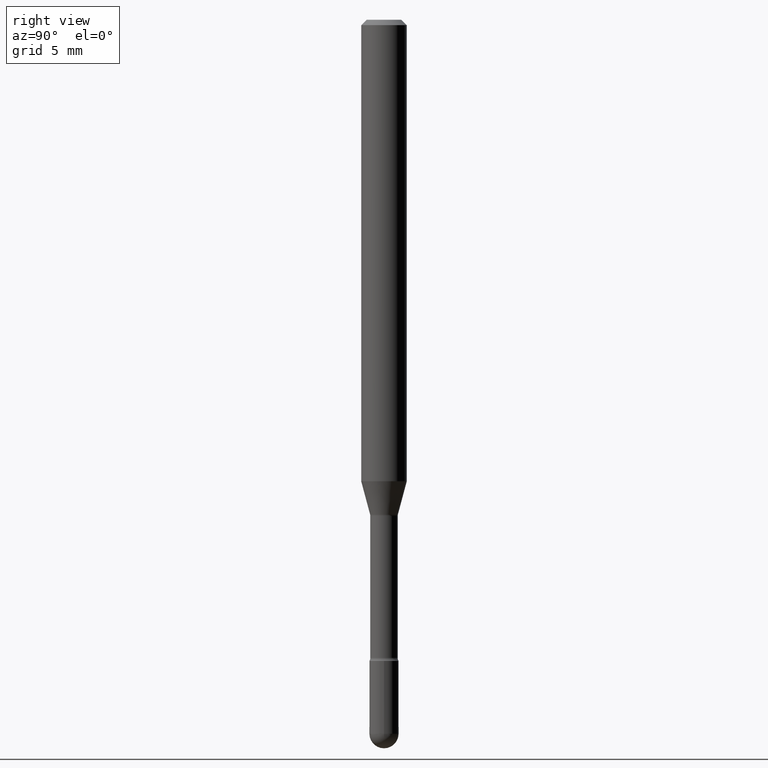
[diagram: clean part render]
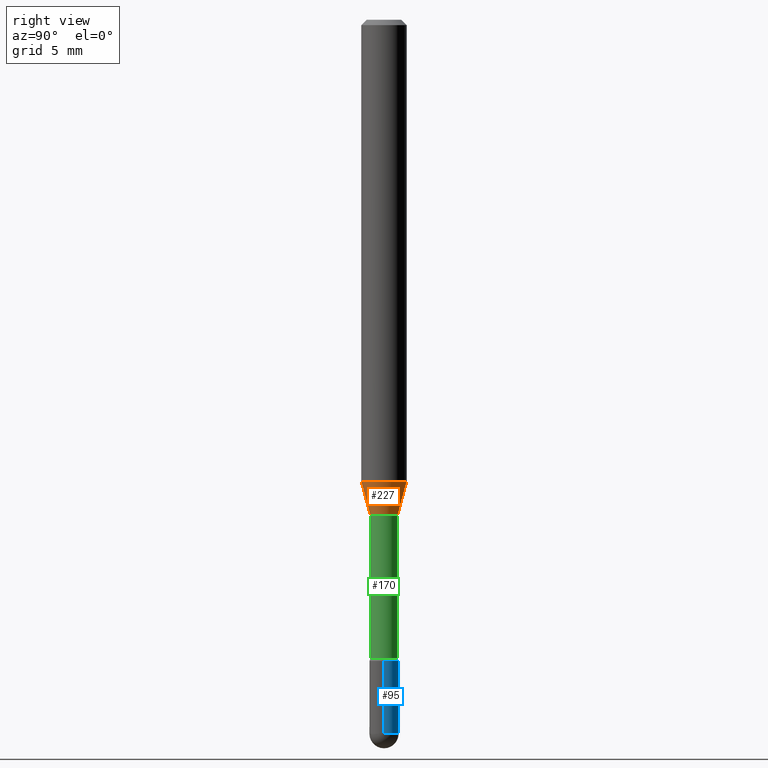
[diagram: same view with three faces highlighted in distinct colors, each labeled with its STEP entity id]
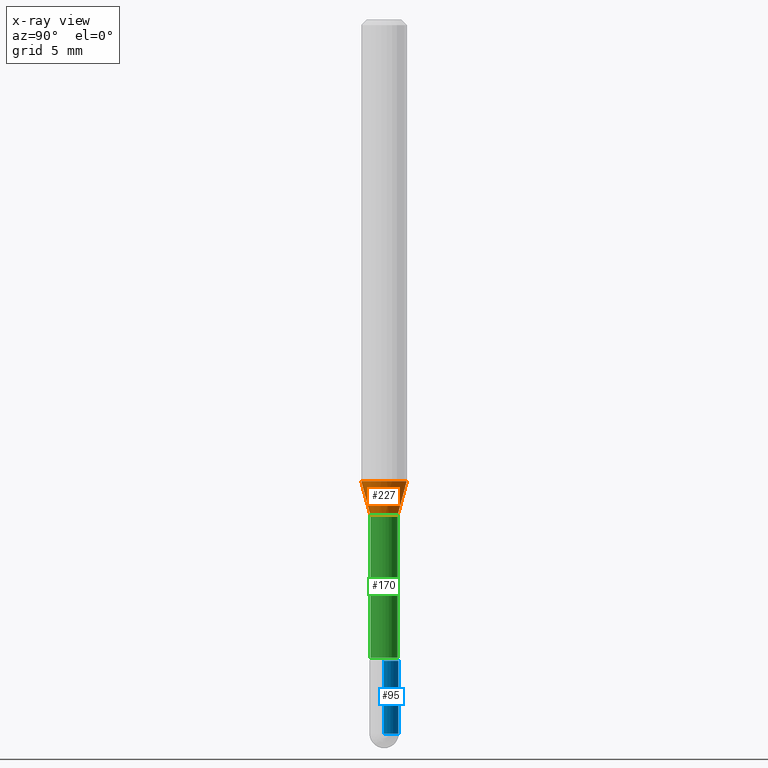
[diagram: x-ray of the same camera — body ghosted, the three highlighted faces saturated]
A machine part, right view with three faces highlighted in distinct colors.
The next image is the same camera in x-ray (body ghosted, the three faces saturated) — at least one of them is partly hidden behind the body in this view.
Their STEP definitions:

[orange] entity #227 — the highlighted conical surface has half-angle 15 deg.
#18 = VERTEX_POINT ( 'NONE', #257 ) ;
#33 = DIRECTION ( 'NONE',  ( -2.445487129029545768E-29, 3.491455099487080109E-15, 1.000000000000000000 ) ) ;
#34 = CONICAL_SURFACE ( 'NONE', #361, 0.03811111260566397985, 0.2617993877991496299 ) ;
#38 = DIRECTION ( 'NONE',  ( -2.445487129029545768E-29, 3.491455099487080109E-15, 1.000000000000000000 ) ) ;
#51 = VERTEX_POINT ( 'NONE', #214 ) ;
#76 = DIRECTION ( 'NONE',  ( -6.982962677686265922E-15, -1.000000000000000000, 4.370956789862821150E-15 ) ) ;
#86 = CARTESIAN_POINT ( 'NONE',  ( 3.098608108331811398E-29, -4.423924768494011913E-15, -1.267071934891534912 ) ) ;
#91 = EDGE_CURVE ( 'NONE', #51, #226, #359, .T. ) ;
#93 = CARTESIAN_POINT ( 'NONE',  ( 4.440892098500932831E-16, 0.06249999999999554523, -1.267071934891535356 ) ) ;
#115 = VERTEX_POINT ( 'NONE', #393 ) ;
#184 = DIRECTION ( 'NONE',  ( -1.807323732225325801E-15, -0.2588190451025175753, 0.9659258262890690894 ) ) ;
#187 = LINE ( 'NONE', #481, #453 ) ;
#189 = EDGE_CURVE ( 'NONE', #115, #51, #187, .T. ) ;
#191 = ORIENTED_EDGE ( 'NONE', *, *, #189, .F. ) ;
#214 = CARTESIAN_POINT ( 'NONE',  ( -4.364351673553609038E-16, -0.06250000000000446865, -1.267071934891534690 ) ) ;
#220 = DIRECTION ( 'NONE',  ( -2.445487129029545768E-29, 3.491455099487080109E-15, 1.000000000000000000 ) ) ;
#226 = VERTEX_POINT ( 'NONE', #93 ) ;
#227 = ADVANCED_FACE ( 'NONE', ( #485 ), #34, .T. ) ;
#244 = EDGE_LOOP ( 'NONE', ( #455, #450, #492, #191 ) ) ;
#256 = DIRECTION ( 'NONE',  ( -6.982962677686265922E-15, -1.000000000000000000, 0.000000000000000000 ) ) ;
#257 = CARTESIAN_POINT ( 'NONE',  ( 3.574424759935120767E-16, 0.03811111260565923364, -1.358092501787273143 ) ) ;
#276 = AXIS2_PLACEMENT_3D ( 'NONE', #86, #33, #76 ) ;
#306 = CARTESIAN_POINT ( 'NONE',  ( 3.321197733152312040E-29, -4.741718990940341378E-15, -1.358092501787273143 ) ) ;
#331 = EDGE_CURVE ( 'NONE', #18, #226, #332, .T. ) ;
#332 = LINE ( 'NONE', #409, #484 ) ;
#359 = CIRCLE ( 'NONE', #276, 0.06250000000000000000 ) ;
#361 = AXIS2_PLACEMENT_3D ( 'NONE', #306, #220, #476 ) ;
#382 = CIRCLE ( 'NONE', #559, 0.03811111260566397985 ) ;
#393 = CARTESIAN_POINT ( 'NONE',  ( -2.661284769304169615E-16, -0.03811111260566871911, -1.358092501787273143 ) ) ;
#409 = CARTESIAN_POINT ( 'NONE',  ( 2.707957421369304265E-16, 0.03811111260565923364, -1.358092501787273143 ) ) ;
#450 = ORIENTED_EDGE ( 'NONE', *, *, #331, .T. ) ;
#453 = VECTOR ( 'NONE', #184, 39.37007874015748854 ) ;
#455 = ORIENTED_EDGE ( 'NONE', *, *, #513, .T. ) ;
#457 = DIRECTION ( 'NONE',  ( 1.839019923739595977E-15, 0.2588190451025243477, 0.9659258262890673130 ) ) ;
#476 = DIRECTION ( 'NONE',  ( -6.982962677686265922E-15, -1.000000000000000000, 0.000000000000000000 ) ) ;
#481 = CARTESIAN_POINT ( 'NONE',  ( -2.661284769304169615E-16, -0.03811111260566871911, -1.358092501787273143 ) ) ;
#484 = VECTOR ( 'NONE', #457, 39.37007874015748143 ) ;
#485 = FACE_OUTER_BOUND ( 'NONE', #244, .T. ) ;
#492 = ORIENTED_EDGE ( 'NONE', *, *, #91, .F. ) ;
#513 = EDGE_CURVE ( 'NONE', #115, #18, #382, .T. ) ;
#550 = CARTESIAN_POINT ( 'NONE',  ( 3.321197733152312040E-29, -4.741718990940341378E-15, -1.358092501787273143 ) ) ;
#559 = AXIS2_PLACEMENT_3D ( 'NONE', #550, #38, #256 ) ;

[blue] entity #95 — the highlighted cylindrical surface (edge-blend (fillet) strip) has radius 1.016 mm, axis along (-0, 0, 1).
#22 = VERTEX_POINT ( 'NONE', #463 ) ;
#27 = CARTESIAN_POINT ( 'NONE',  ( -0.04000000000000000083, 2.842170943040400803E-16, -1.967574036101962509E-30 ) ) ;
#36 = EDGE_CURVE ( 'NONE', #70, #112, #142, .T. ) ;
#37 = CIRCLE ( 'NONE', #555, 0.03999999999999999389 ) ;
#39 = CARTESIAN_POINT ( 'NONE',  ( 0.000000000000000000, 0.000000000000000000, 0.000000000000000000 ) ) ;
#42 = CARTESIAN_POINT ( 'NONE',  ( 4.304025098885840590E-29, -6.145007156363937109E-15, -1.760000000000000009 ) ) ;
#64 = VERTEX_POINT ( 'NONE', #79 ) ;
#70 = VERTEX_POINT ( 'NONE', #435 ) ;
#79 = CARTESIAN_POINT ( 'NONE',  ( -0.04000000000000000083, -6.209938195944210907E-15, -1.760000000000000009 ) ) ;
#85 = EDGE_CURVE ( 'NONE', #22, #64, #533, .T. ) ;
#94 = VERTEX_POINT ( 'NONE', #342 ) ;
#95 = ADVANCED_FACE ( 'NONE', ( #262 ), #469, .T. ) ;
#112 = VERTEX_POINT ( 'NONE', #171 ) ;
#119 = CARTESIAN_POINT ( 'NONE',  ( 4.793118860122867012E-29, -6.843303424132564569E-15, -1.959999999999999964 ) ) ;
#126 = DIRECTION ( 'NONE',  ( 1.000000000000000000, -6.982962677686259611E-15, 0.000000000000000000 ) ) ;
#142 = CIRCLE ( 'NONE', #384, 0.03999999999999999389 ) ;
#143 = LINE ( 'NONE', #27, #355 ) ;
#171 = CARTESIAN_POINT ( 'NONE',  ( 2.793185071074987002E-16, 0.03999999999999317296, -1.960000000000000187 ) ) ;
#180 = AXIS2_PLACEMENT_3D ( 'NONE', #39, #300, #255 ) ;
#207 = CARTESIAN_POINT ( 'NONE',  ( 4.793118860122867012E-29, -6.843303424132564569E-15, -1.959999999999999964 ) ) ;
#224 = VECTOR ( 'NONE', #503, 39.37007874015748143 ) ;
#255 = DIRECTION ( 'NONE',  ( 1.000000000000000000, -6.982962677686265922E-15, 4.876176775795935793E-29 ) ) ;
#258 = DIRECTION ( 'NONE',  ( 1.000000000000000000, -6.982962677686260400E-15, 0.000000000000000000 ) ) ;
#262 = FACE_OUTER_BOUND ( 'NONE', #536, .T. ) ;
#282 = ORIENTED_EDGE ( 'NONE', *, *, #437, .T. ) ;
#300 = DIRECTION ( 'NONE',  ( -2.445468806185136597E-29, 3.491481338843145583E-15, 1.000000000000000000 ) ) ;
#325 = ORIENTED_EDGE ( 'NONE', *, *, #36, .T. ) ;
#334 = DIRECTION ( 'NONE',  ( -2.445468806185136597E-29, 3.491481338843145583E-15, 1.000000000000000000 ) ) ;
#342 = CARTESIAN_POINT ( 'NONE',  ( -0.03999999999999999389, -6.209938195944210907E-15, -1.959999999999999964 ) ) ;
#348 = DIRECTION ( 'NONE',  ( -2.445468806185136597E-29, 3.491481338843145583E-15, 1.000000000000000000 ) ) ;
#355 = VECTOR ( 'NONE', #491, 39.37007874015748143 ) ;
#383 = DIRECTION ( 'NONE',  ( -2.445468806185136597E-29, 3.491481338843145583E-15, 1.000000000000000000 ) ) ;
#384 = AXIS2_PLACEMENT_3D ( 'NONE', #207, #383, #471 ) ;
#398 = ORIENTED_EDGE ( 'NONE', *, *, #525, .F. ) ;
#435 = CARTESIAN_POINT ( 'NONE',  ( 0.03999999999999999389, -6.773473797355701271E-15, -1.959999999999999964 ) ) ;
#437 = EDGE_CURVE ( 'NONE', #94, #64, #143, .T. ) ;
#463 = CARTESIAN_POINT ( 'NONE',  ( 0.04000000000000000083, -6.424325663471387146E-15, -1.760000000000000009 ) ) ;
#464 = CARTESIAN_POINT ( 'NONE',  ( 0.04000000000000000083, -2.793185071074506290E-16, 1.950470710318374387E-30 ) ) ;
#469 = CYLINDRICAL_SURFACE ( 'NONE', #180, 0.04000000000000000083 ) ;
#471 = DIRECTION ( 'NONE',  ( 1.000000000000000000, -6.982962677686260400E-15, 0.000000000000000000 ) ) ;
#486 = AXIS2_PLACEMENT_3D ( 'NONE', #42, #348, #126 ) ;
#487 = ORIENTED_EDGE ( 'NONE', *, *, #558, .T. ) ;
#491 = DIRECTION ( 'NONE',  ( -2.445468806185136877E-29, 3.491481338843145188E-15, 1.000000000000000000 ) ) ;
#503 = DIRECTION ( 'NONE',  ( -2.445468806185136877E-29, 3.491481338843145188E-15, 1.000000000000000000 ) ) ;
#525 = EDGE_CURVE ( 'NONE', #70, #22, #548, .T. ) ;
#533 = CIRCLE ( 'NONE', #486, 0.04000000000000000083 ) ;
#536 = EDGE_LOOP ( 'NONE', ( #487, #282, #545, #398, #325 ) ) ;
#545 = ORIENTED_EDGE ( 'NONE', *, *, #85, .F. ) ;
#548 = LINE ( 'NONE', #464, #224 ) ;
#555 = AXIS2_PLACEMENT_3D ( 'NONE', #119, #334, #258 ) ;
#558 = EDGE_CURVE ( 'NONE', #112, #94, #37, .T. ) ;

[green] entity #170 — the highlighted cylindrical surface (edge-blend (fillet) strip) has radius 0.955 mm, axis along (-0, 0, 1).
#8 = DIRECTION ( 'NONE',  ( -2.445487129029545488E-29, 3.491455099487080109E-15, 1.000000000000000000 ) ) ;
#14 = VECTOR ( 'NONE', #8, 39.37007874015748143 ) ;
#21 = CIRCLE ( 'NONE', #234, 0.03760000000000007087 ) ;
#28 = VERTEX_POINT ( 'NONE', #218 ) ;
#35 = DIRECTION ( 'NONE',  ( -6.982962677686265922E-15, -1.000000000000000000, 0.000000000000000000 ) ) ;
#55 = CYLINDRICAL_SURFACE ( 'NONE', #291, 0.03760000000000003617 ) ;
#84 = CARTESIAN_POINT ( 'NONE',  ( -2.625593966809703230E-16, -0.03760000000000476156, -1.361974787463811065 ) ) ;
#99 = LINE ( 'NONE', #400, #14 ) ;
#108 = VERTEX_POINT ( 'NONE', #84 ) ;
#135 = DIRECTION ( 'NONE',  ( -2.445487129029545488E-29, 3.491455099487080109E-15, 1.000000000000000000 ) ) ;
#163 = AXIS2_PLACEMENT_3D ( 'NONE', #167, #387, #35 ) ;
#167 = CARTESIAN_POINT ( 'NONE',  ( 3.330691812805500619E-29, -4.755273817063354605E-15, -1.361974787463811065 ) ) ;
#170 = ADVANCED_FACE ( 'NONE', ( #177 ), #55, .T. ) ;
#175 = VERTEX_POINT ( 'NONE', #229 ) ;
#177 = FACE_OUTER_BOUND ( 'NONE', #201, .T. ) ;
#178 = EDGE_CURVE ( 'NONE', #175, #108, #99, .T. ) ;
#201 = EDGE_LOOP ( 'NONE', ( #502, #404, #290, #221 ) ) ;
#205 = DIRECTION ( 'NONE',  ( -2.445487129029545768E-29, 3.491455099487080109E-15, 1.000000000000000000 ) ) ;
#218 = CARTESIAN_POINT ( 'NONE',  ( 2.671640686458407226E-16, 0.03759999999999524833, -1.361974787463811065 ) ) ;
#221 = ORIENTED_EDGE ( 'NONE', *, *, #178, .F. ) ;
#223 = LINE ( 'NONE', #523, #519 ) ;
#225 = DIRECTION ( 'NONE',  ( -6.982962677686267499E-15, -1.000000000000000000, 3.491455099487080898E-15 ) ) ;
#229 = CARTESIAN_POINT ( 'NONE',  ( -2.625593966809612511E-16, -0.03760000000000619097, -1.751861204020249918 ) ) ;
#234 = AXIS2_PLACEMENT_3D ( 'NONE', #389, #205, #251 ) ;
#241 = CIRCLE ( 'NONE', #163, 0.03760000000000000842 ) ;
#251 = DIRECTION ( 'NONE',  ( -6.982962677686267499E-15, -1.000000000000000000, 0.000000000000000000 ) ) ;
#274 = DIRECTION ( 'NONE',  ( -2.445487129029545768E-29, 3.491455099487080109E-15, 1.000000000000000000 ) ) ;
#290 = ORIENTED_EDGE ( 'NONE', *, *, #551, .F. ) ;
#291 = AXIS2_PLACEMENT_3D ( 'NONE', #316, #274, #225 ) ;
#303 = EDGE_CURVE ( 'NONE', #483, #28, #223, .T. ) ;
#316 = CARTESIAN_POINT ( 'NONE',  ( -1.169113584055446105E-44, 1.669184350826100908E-30, 4.780733988912460139E-16 ) ) ;
#387 = DIRECTION ( 'NONE',  ( -2.445487129029545768E-29, 3.491455099487080109E-15, 1.000000000000000000 ) ) ;
#389 = CARTESIAN_POINT ( 'NONE',  ( 4.284154026277723862E-29, -6.116544734370077730E-15, -1.751861204020249918 ) ) ;
#400 = CARTESIAN_POINT ( 'NONE',  ( -2.625593966810038989E-16, -0.03760000000000003617, 6.093521106319604609E-16 ) ) ;
#404 = ORIENTED_EDGE ( 'NONE', *, *, #303, .T. ) ;
#451 = CARTESIAN_POINT ( 'NONE',  ( 2.756905814749619718E-16, 0.03759999999999395770, -1.751861204020249918 ) ) ;
#483 = VERTEX_POINT ( 'NONE', #451 ) ;
#502 = ORIENTED_EDGE ( 'NONE', *, *, #543, .T. ) ;
#519 = VECTOR ( 'NONE', #135, 39.37007874015748143 ) ;
#523 = CARTESIAN_POINT ( 'NONE',  ( 2.671640686457979269E-16, 0.03760000000000003617, 3.467946871505317148E-16 ) ) ;
#543 = EDGE_CURVE ( 'NONE', #175, #483, #21, .T. ) ;
#551 = EDGE_CURVE ( 'NONE', #108, #28, #241, .T. ) ;